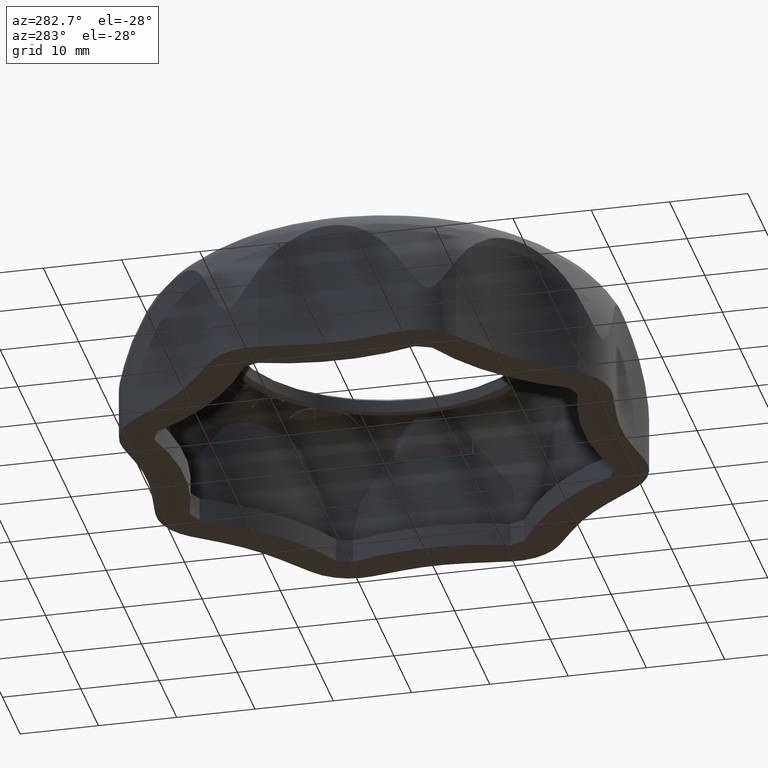
[diagram: clean part render]
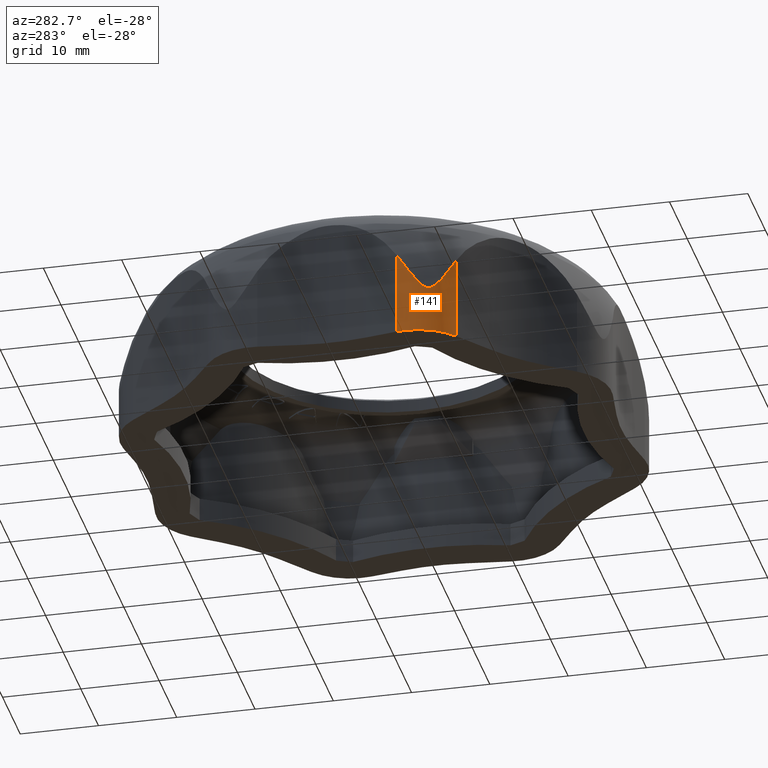
[diagram: same view with one face highlighted and labeled with its STEP entity id]
A machine part, auxiliary view. The second image highlights one B-rep face of the part: STEP entity #141.
In plain terms, the highlighted cylindrical surface (partial cylindrical patch) has radius 7.3 mm, axis along (0, 0, 1).
Its self-contained STEP definition (entity closure, byte-faithful):
#141 = ADVANCED_FACE( '', ( #2562 ), #2563, .T. );
#2562 = FACE_OUTER_BOUND( '', #7297, .T. );
#2563 = CYLINDRICAL_SURFACE( '', #7298, 7.30000000000000 );
#7297 = EDGE_LOOP( '', ( #12666, #12667, #12668, #12669 ) );
#7298 = AXIS2_PLACEMENT_3D( '', #12670, #12671, #12672 );
#12666 = ORIENTED_EDGE( '', *, *, #33324, .T. );
#12667 = ORIENTED_EDGE( '', *, *, #33130, .T. );
#12668 = ORIENTED_EDGE( '', *, *, #33326, .F. );
#12669 = ORIENTED_EDGE( '', *, *, #33327, .T. );
#12670 = CARTESIAN_POINT( '', ( -24.1707670840142, -9.84805896270520, 115.096924112570 ) );
#12671 = DIRECTION( '', ( 0.000000000000000, 0.000000000000000, 1.00000000000000 ) );
#12672 = DIRECTION( '', ( 0.605400036454186, 0.795921350298677, 0.000000000000000 ) );
#33130 = EDGE_CURVE( '', #40188, #40186, #40189, .T. );
#33324 = EDGE_CURVE( '', #40514, #40188, #40515, .T. );
#33326 = EDGE_CURVE( '', #40517, #40186, #40518, .T. );
#33327 = EDGE_CURVE( '', #40517, #40514, #40519, .T. );
#40186 = VERTEX_POINT( '', #51979 );
#40188 = VERTEX_POINT( '', #51982 );
#40189 = CIRCLE( '', #51983, 7.30000000000000 );
#40514 = VERTEX_POINT( '', #52766 );
#40515 = LINE( '', #52767, #52768 );
#40517 = VERTEX_POINT( '', #52775 );
#40518 = LINE( '', #52776, #52777 );
#40519 = B_SPLINE_CURVE_WITH_KNOTS( '', 3, ( #52778, #52779, #52780, #52781, #52782, #52783, #52784, #52785, #52786, #52787, #52788, #52789, #52790, #52791, #52792, #52793, #52794, #52795, #52796, #52797, #52798, #52799, #52800, #52801, #52802, #52803, #52804, #52805, #52806, #52807 ), .UNSPECIFIED., .F., .F., ( 4, 2, 2, 2, 2, 2, 2, 2, 2, 2, 2, 2, 2, 2, 4 ), ( 4.28140187372737E-007, 0.00158762701062102, 0.00317482588105468, 0.00396842531627150, 0.00476202475148833, 0.00515882446909674, 0.00555562418670515, 0.00595242390431356, 0.00634922362192197, 0.00674602333953038, 0.00714282305713879, 0.00793642249235561, 0.00952362136278925, 0.0111108202332229, 0.0126980191036565 ), .UNSPECIFIED. );
#51979 = CARTESIAN_POINT( '', ( -28.5901873501296, -15.6582848198857, -3.88386123990891E-005 ) );
#51982 = CARTESIAN_POINT( '', ( -31.3678887438183, -8.62681377275370, -3.88386123990891E-005 ) );
#51983 = AXIS2_PLACEMENT_3D( '', #81149, #81150, #81151 );
#52766 = CARTESIAN_POINT( '', ( -31.3678887438163, -8.62681377274206, 10.8792890572338 ) );
#52767 = CARTESIAN_POINT( '', ( -31.3678887438183, -8.62681377275370, 115.096924112570 ) );
#52768 = VECTOR( '', #81372, 1000.00000000000 );
#52775 = CARTESIAN_POINT( '', ( -28.5901873501184, -15.6582848198940, 10.6359667971082 ) );
#52776 = CARTESIAN_POINT( '', ( -28.5901873501296, -15.6582848198857, 115.096924112570 ) );
#52777 = VECTOR( '', #81373, 1000.00000000000 );
#52778 = CARTESIAN_POINT( '', ( -28.5901873501184, -15.6582848198942, 10.6359667971081 ) );
#52779 = CARTESIAN_POINT( '', ( -28.8178876145526, -15.4850896312782, 10.1897592805160 ) );
#52780 = CARTESIAN_POINT( '', ( -29.0355231899767, -15.2985679448076, 9.74479193734611 ) );
#52781 = CARTESIAN_POINT( '', ( -29.4520883882632, -14.8959838250385, 8.85931725819077 ) );
#52782 = CARTESIAN_POINT( '', ( -29.6510366871814, -14.6801584770933, 8.41803595987963 ) );
#52783 = CARTESIAN_POINT( '', ( -29.9383069149177, -14.3256274389017, 7.76705277590229 ) );
#52784 = CARTESIAN_POINT( '', ( -30.0321302676933, -14.2023881145236, 7.55214188461034 ) );
#52785 = CARTESIAN_POINT( '', ( -30.2178466312172, -13.9405630473903, 7.13036760891603 ) );
#52786 = CARTESIAN_POINT( '', ( -30.3095897394781, -13.8023389166092, 6.92322741227956 ) );
#52787 = CARTESIAN_POINT( '', ( -30.4482174163143, -13.5751873094054, 6.62953343447592 ) );
#52788 = CARTESIAN_POINT( '', ( -30.4946519929810, -13.4960609100914, 6.53444337455224 ) );
#52789 = CARTESIAN_POINT( '', ( -30.5894940812180, -13.3264755975204, 6.35418544575751 ) );
#52790 = CARTESIAN_POINT( '', ( -30.6381077680538, -13.2356429387189, 6.26850509846697 ) );
#52791 = CARTESIAN_POINT( '', ( -30.7377182579156, -13.0382584858657, 6.12141752389261 ) );
#52792 = CARTESIAN_POINT( '', ( -30.7894609178626, -12.9301320850136, 6.05922299433113 ) );
#52793 = CARTESIAN_POINT( '', ( -30.8931338787679, -12.6969302259024, 5.98823502960297 ) );
#52794 = CARTESIAN_POINT( '', ( -30.9452065306157, -12.5709587465964, 5.98189549484088 ) );
#52795 = CARTESIAN_POINT( '', ( -31.0386740357674, -12.3257730605877, 6.03494766929504 ) );
#52796 = CARTESIAN_POINT( '', ( -31.0788037290560, -12.2106574236233, 6.09043040319252 ) );
#52797 = CARTESIAN_POINT( '', ( -31.1488090773946, -11.9950968560348, 6.22889939087096 ) );
#52798 = CARTESIAN_POINT( '', ( -31.1783594590883, -11.8958388710767, 6.31061532511273 ) );
#52799 = CARTESIAN_POINT( '', ( -31.2576086746156, -11.6103557773850, 6.57432547368743 ) );
#52800 = CARTESIAN_POINT( '', ( -31.2974659309769, -11.4380869541280, 6.77262064496601 ) );
#52801 = CARTESIAN_POINT( '', ( -31.3955609461676, -10.9455358529511, 7.37901748848561 ) );
#52802 = CARTESIAN_POINT( '', ( -31.4332873312150, -10.6444690504175, 7.80694342834859 ) );
#52803 = CARTESIAN_POINT( '', ( -31.4740053447483, -10.0509882010131, 8.67313431302121 ) );
#52804 = CARTESIAN_POINT( '', ( -31.4758654730676, -9.76104998641380, 9.11298950934282 ) );
#52805 = CARTESIAN_POINT( '', ( -31.4465924731751, -9.18897024170582, 9.99400755386920 ) );
#52806 = CARTESIAN_POINT( '', ( -31.4153662940768, -8.90661156285225, 10.4361746763200 ) );
#52807 = CARTESIAN_POINT( '', ( -31.3678887438162, -8.62681377274207, 10.8792890572338 ) );
#81149 = CARTESIAN_POINT( '', ( -24.1707670840142, -9.84805896270520, -3.88386123990891E-005 ) );
#81150 = DIRECTION( '', ( 2.34318281388423E-017, -5.65694372839885E-017, 1.00000000000000 ) );
#81151 = DIRECTION( '', ( 0.382683432365090, -0.923879532511287, -6.12303176911189E-017 ) );
#81372 = DIRECTION( '', ( 0.000000000000000, 0.000000000000000, -1.00000000000000 ) );
#81373 = DIRECTION( '', ( 0.000000000000000, 0.000000000000000, -1.00000000000000 ) );